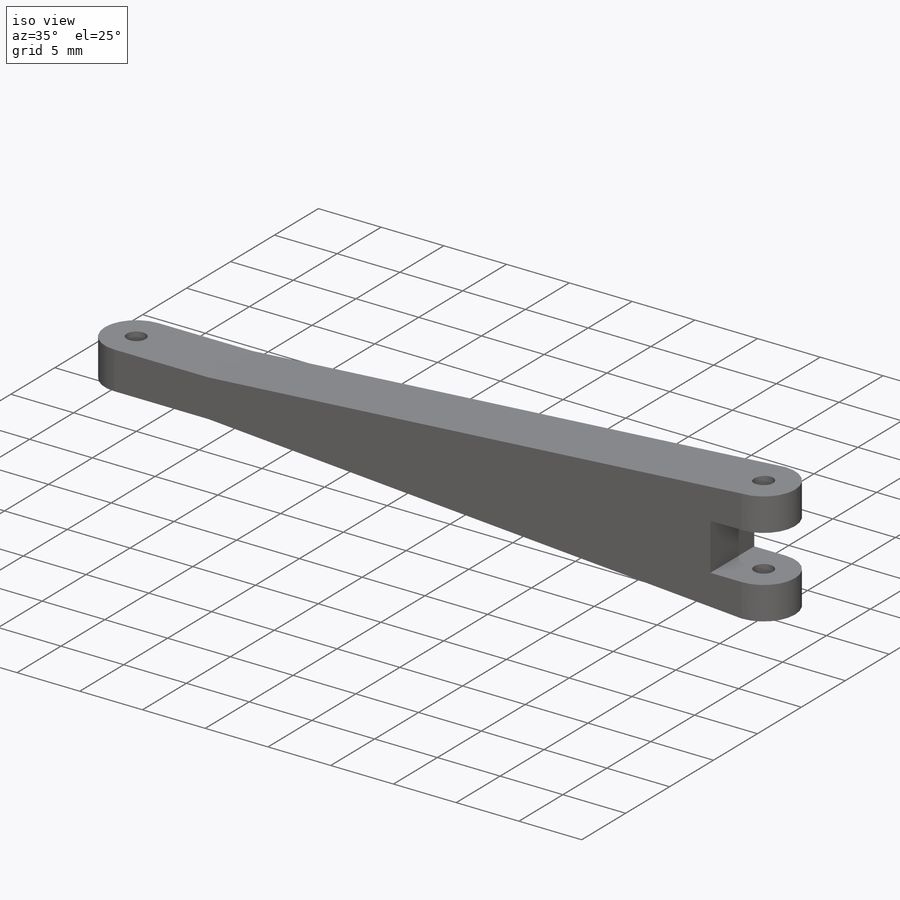
[diagram: iso view]
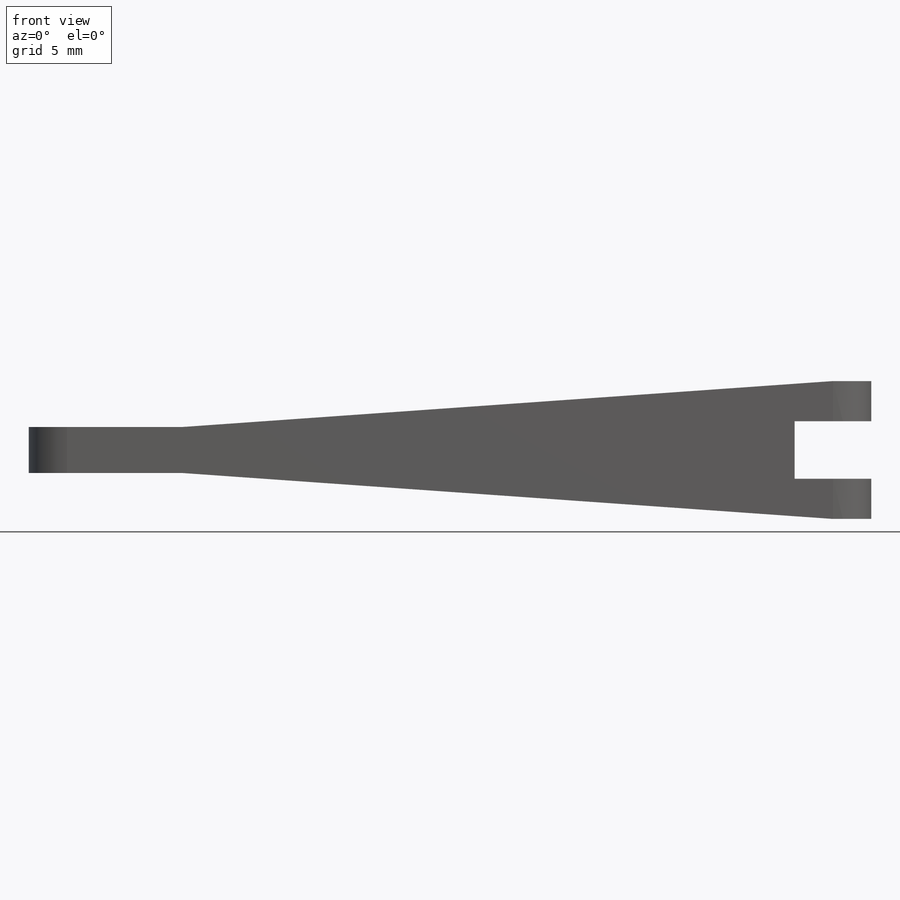
[diagram: front view]
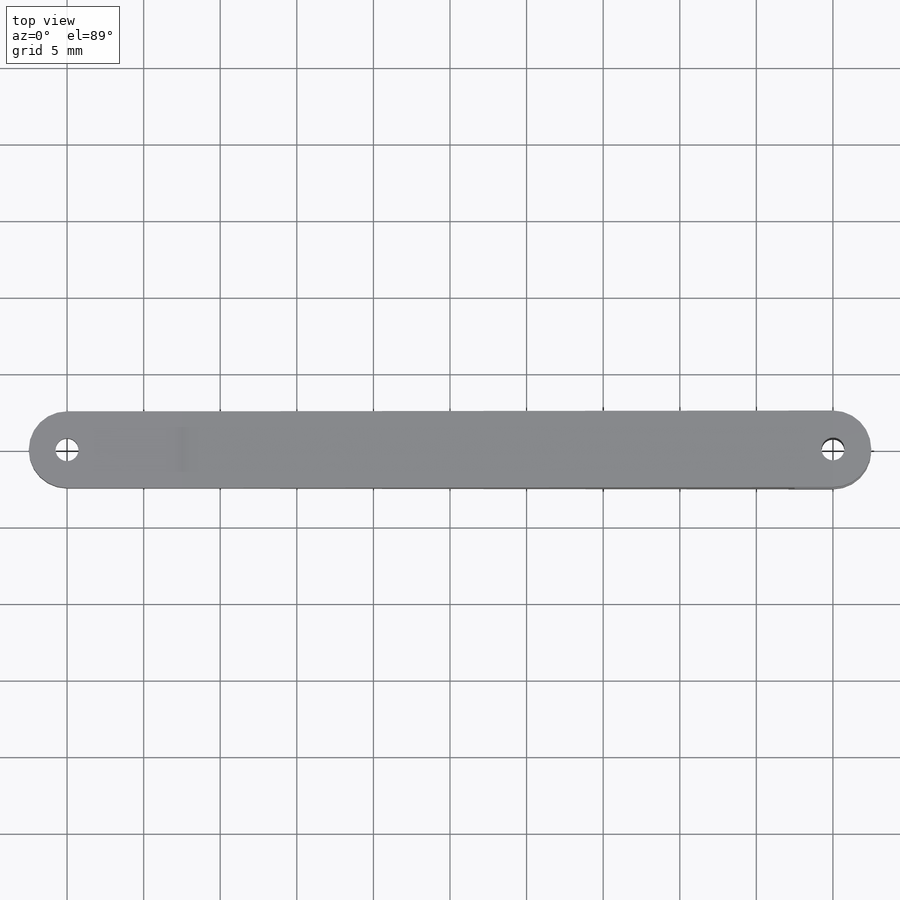
[diagram: top view]
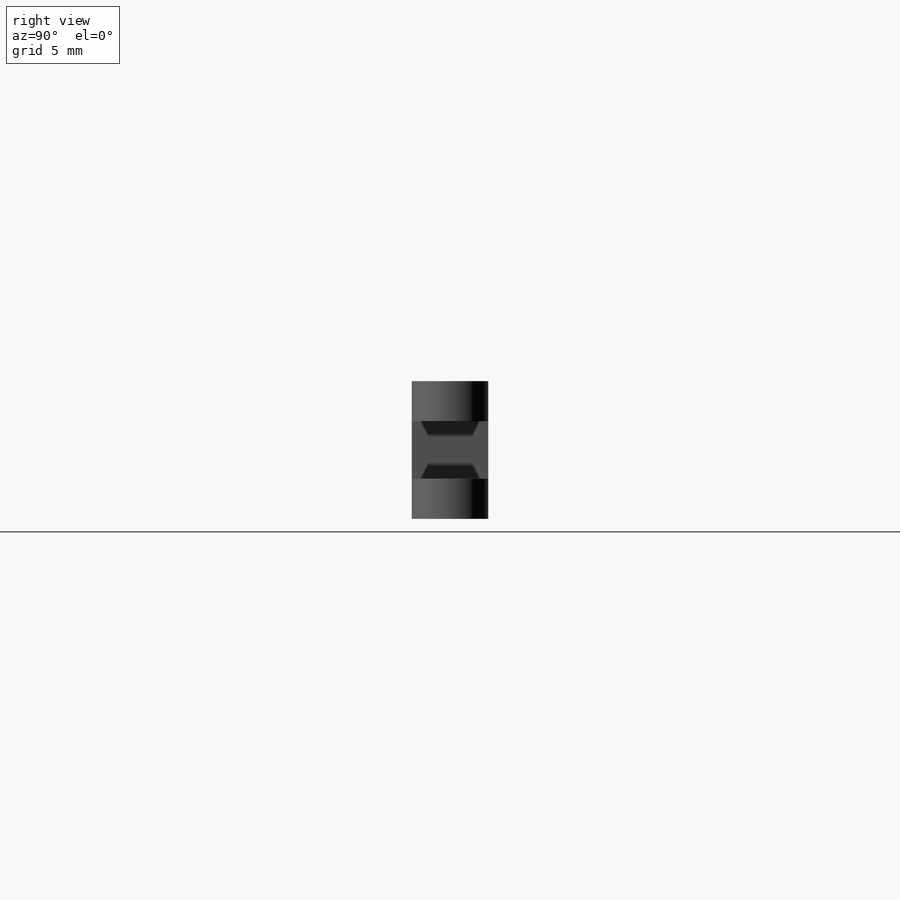
[diagram: right view]
SOLIDWORKS PART (.sldprt)
format: sldprt  version: not decoded by parser v0  size: 201,216 bytes
history: native  units: mm
features: sketch x5, cut_extrude x4, material x1, extrude x1 + 1 further entry (+13 scaffold rows collapsed)
feature tree (25):
  scaffold x13  (default folders/planes/origin — collapsed)
  material  "Material <not specified>"
  "Design Table"
  sketch  "Sketch2"  dims[D2=2.5mm D3=5.0mm D1=50.0mm]
  extrude  "Boss-Extrude2"  Depth=9mm
  sketch  "Sketch3"  dims[D1=3.0mm D2=3.0mm D3=10.0mm D4=~0.082105mm D5=~4.509746mm]
  cut_extrude  "Cut-Extrude3"  [1 undecoded]
  sketch  "Sketch4"  dims[D1=5.0mm]
  cut_extrude  "Cut-Extrude4"  Depth=3.75mm
  sketch  "Sketch6"  dims[D1=1.5mm D2=1.5mm]
  cut_extrude  "Cut-Extrude6"  [1 undecoded]
  sketch  "Sketch8"  dims[D1=5.0mm]
  cut_extrude  "Cut-Extrude10"  Depth=40mm
decode coverage: 8 of 10 modeling features carry decoded parameters; 1 rows unclassified (native names shown)
note: ~ marks probable driven/reference dimensions
note: 2 parameter values undecoded
note: suppression state not decoded; provenance and decode notes live in map.json
